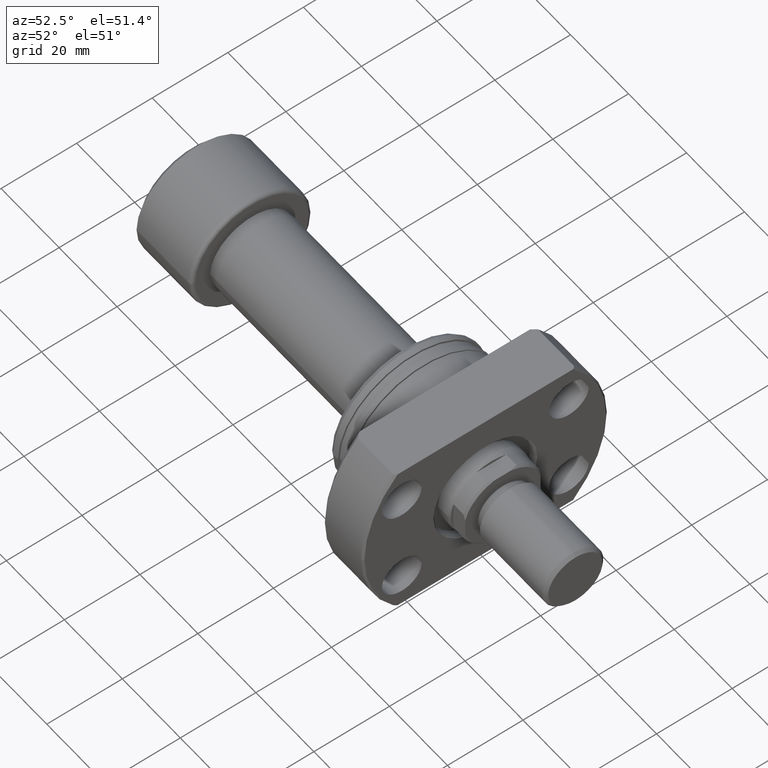
[diagram: clean part render]
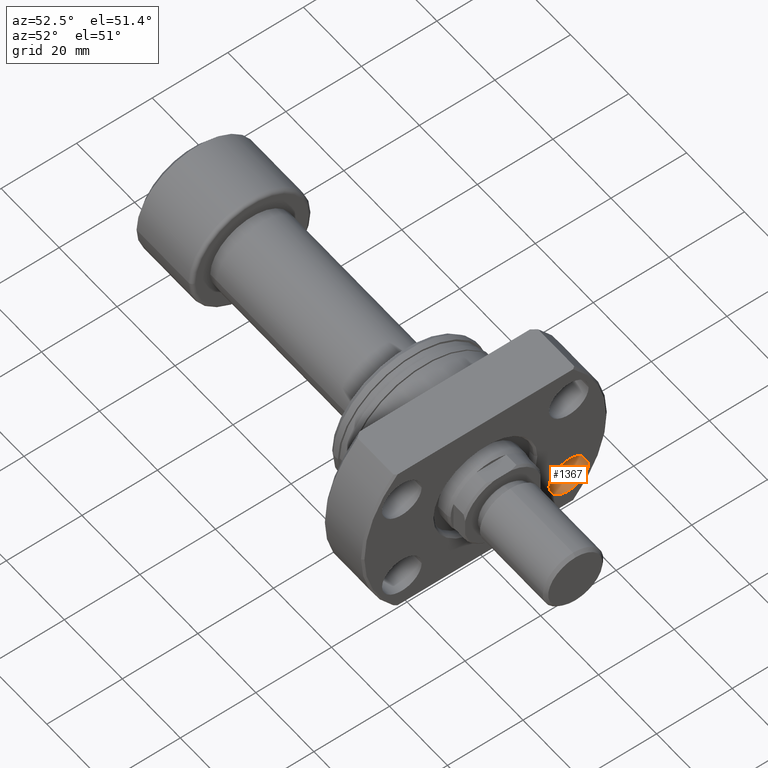
[diagram: same view with one face highlighted and labeled with its STEP entity id]
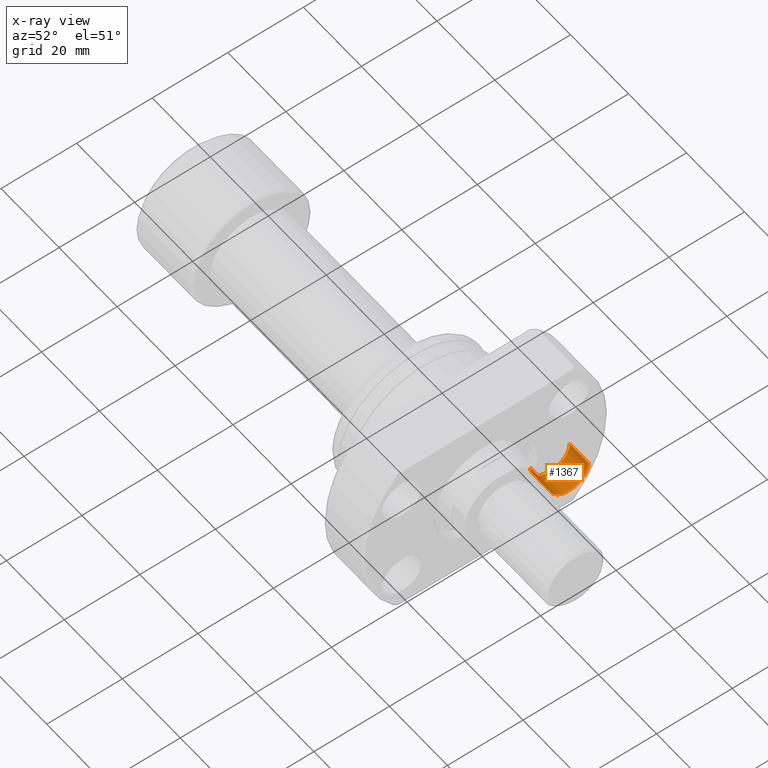
[diagram: x-ray of the same camera — body ghosted, the highlighted face saturated]
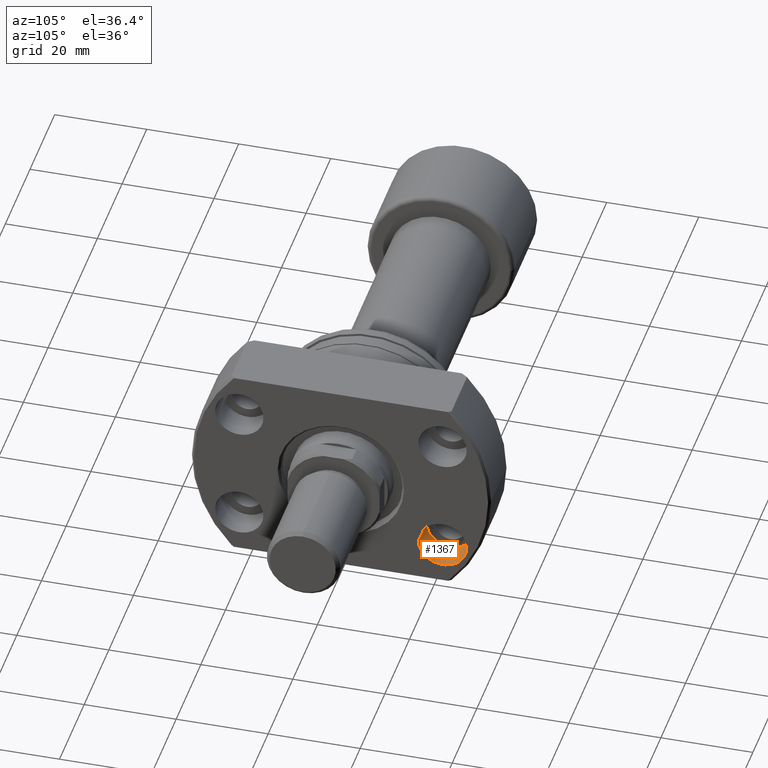
[diagram: same view with one face highlighted and labeled with its STEP entity id]
A machine part, auxiliary view. The second image highlights one B-rep face of the part: STEP entity #1367.
The next image is the same camera in x-ray: the body ghosted, the highlighted face saturated — about 3% of this face is hidden behind the body in this view.
A second angle (auxiliary view) of the same face is appended — the face is thin or edge-on in the first view.
In plain terms, the highlighted cylindrical surface (edge-blend (fillet) strip) has radius 5.25 mm, axis along (1, -0, 0).
Its self-contained STEP definition (entity closure, byte-faithful):
#85 = DIRECTION ( 'NONE',  ( 1.000000000000000000, -2.887798767815668620E-14, -6.310887241768094443E-30 ) ) ;
#94 = VECTOR ( 'NONE', #797, 1000.000000000000000 ) ;
#251 = CARTESIAN_POINT ( 'NONE',  ( 21.00000000000079581, 27.34999999999939746, -12.75000000000000178 ) ) ;
#452 = AXIS2_PLACEMENT_3D ( 'NONE', #1169, #85, #949 ) ;
#480 = VERTEX_POINT ( 'NONE', #1435 ) ;
#538 = CARTESIAN_POINT ( 'NONE',  ( 21.00000000000049027, 16.84999999999939746, -12.75000000000000178 ) ) ;
#797 = DIRECTION ( 'NONE',  ( 1.000000000000000000, -2.886466111666352516E-14, -0.000000000000000000 ) ) ;
#802 = VERTEX_POINT ( 'NONE', #1117 ) ;
#814 = FACE_OUTER_BOUND ( 'NONE', #2749, .T. ) ;
#919 = ORIENTED_EDGE ( 'NONE', *, *, #1338, .F. ) ;
#949 = DIRECTION ( 'NONE',  ( 2.907726969256361977E-14, 1.000000000000000000, 0.000000000000000000 ) ) ;
#1115 = ORIENTED_EDGE ( 'NONE', *, *, #2757, .F. ) ;
#1117 = CARTESIAN_POINT ( 'NONE',  ( 21.00000000000049027, 16.84999999999939746, -12.75000000000000178 ) ) ;
#1167 = VERTEX_POINT ( 'NONE', #2669 ) ;
#1169 = CARTESIAN_POINT ( 'NONE',  ( 21.00000000000064304, 22.09999999999939746, -12.75000000000000178 ) ) ;
#1338 = EDGE_CURVE ( 'NONE', #1167, #1628, #3367, .T. ) ;
#1367 = ADVANCED_FACE ( 'NONE', ( #814 ), #3337, .F. ) ;
#1435 = CARTESIAN_POINT ( 'NONE',  ( 27.50000000000049027, 16.84999999999920917, -12.75000000000000178 ) ) ;
#1628 = VERTEX_POINT ( 'NONE', #2080 ) ;
#1702 = CIRCLE ( 'NONE', #2536, 5.250000000000000888 ) ;
#1765 = AXIS2_PLACEMENT_3D ( 'NONE', #1954, #1933, #2209 ) ;
#1866 = CARTESIAN_POINT ( 'NONE',  ( 27.50000000000064304, 22.09999999999920917, -12.75000000000000178 ) ) ;
#1933 = DIRECTION ( 'NONE',  ( 1.000000000000000000, -2.886466111666352516E-14, -0.000000000000000000 ) ) ;
#1954 = CARTESIAN_POINT ( 'NONE',  ( 21.00000000000064304, 22.09999999999939746, -12.75000000000000178 ) ) ;
#2080 = CARTESIAN_POINT ( 'NONE',  ( 27.50000000000079581, 27.34999999999921272, -12.75000000000000178 ) ) ;
#2123 = VECTOR ( 'NONE', #2189, 1000.000000000000000 ) ;
#2175 = DIRECTION ( 'NONE',  ( 1.000000000000000000, -2.887798767815668620E-14, -6.310887241768094443E-30 ) ) ;
#2189 = DIRECTION ( 'NONE',  ( 1.000000000000000000, -2.886466111666352516E-14, -0.000000000000000000 ) ) ;
#2209 = DIRECTION ( 'NONE',  ( 2.907726969256361977E-14, 1.000000000000000000, 0.000000000000000000 ) ) ;
#2312 = ORIENTED_EDGE ( 'NONE', *, *, #2903, .T. ) ;
#2455 = EDGE_CURVE ( 'NONE', #480, #1628, #1702, .T. ) ;
#2478 = DIRECTION ( 'NONE',  ( 2.907726969256361977E-14, 1.000000000000000000, 0.000000000000000000 ) ) ;
#2536 = AXIS2_PLACEMENT_3D ( 'NONE', #1866, #2175, #2478 ) ;
#2669 = CARTESIAN_POINT ( 'NONE',  ( 21.00000000000079581, 27.34999999999939746, -12.75000000000000178 ) ) ;
#2715 = CIRCLE ( 'NONE', #452, 5.250000000000000888 ) ;
#2749 = EDGE_LOOP ( 'NONE', ( #1115, #2312, #3456, #919 ) ) ;
#2757 = EDGE_CURVE ( 'NONE', #802, #1167, #2715, .T. ) ;
#2903 = EDGE_CURVE ( 'NONE', #802, #480, #3604, .T. ) ;
#3337 = CYLINDRICAL_SURFACE ( 'NONE', #1765, 5.250000000000000888 ) ;
#3367 = LINE ( 'NONE', #251, #94 ) ;
#3456 = ORIENTED_EDGE ( 'NONE', *, *, #2455, .T. ) ;
#3604 = LINE ( 'NONE', #538, #2123 ) ;